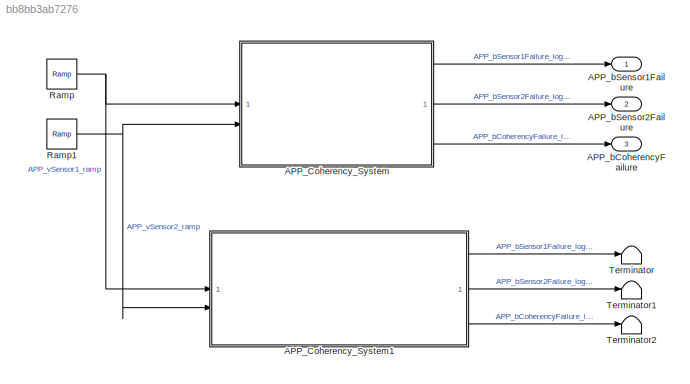
MODEL slx_bb8bb3ab7276
KIND model
CONFIG AbsTol = auto
CONFIG EnableMultiTasking = off
CONFIG FixedStep = 1e-3
CONFIG MaxStep = 1e-3
CONFIG MinStep = auto
CONFIG RelTol = 1e-3
CONFIG SampleTimeConstraint = Unconstrained
CONFIG SolverName = FixedStepDiscrete
CONFIG StartTime = 0.0
CONFIG StopTime = 1
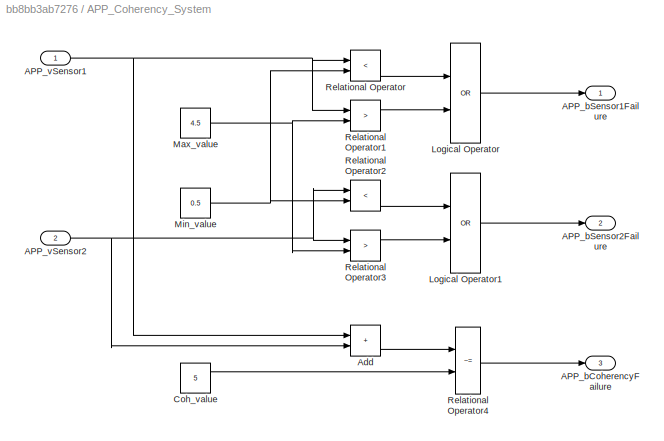
BLOCK [SubSystem] APP_Coherency_System
  TreatAsAtomicUnit = on
BLOCK [Outport] APP_Coherency_System/APP_bCoherencyFailure
  Port = 3
BLOCK [Outport] APP_Coherency_System/APP_bSensor1Failure
BLOCK [Outport] APP_Coherency_System/APP_bSensor2Failure
  Port = 2
BLOCK [Inport] APP_Coherency_System/APP_vSensor1
BLOCK [Inport] APP_Coherency_System/APP_vSensor2
  NameLocation = top
  Port = 2
BLOCK [Sum] APP_Coherency_System/Add
  IconShape = rectangular
BLOCK [Constant] APP_Coherency_System/Coh_value
  Value = 5
BLOCK [Logic] APP_Coherency_System/Logical Operator
  AllPortsSameDT = off
  Operator = OR
  OutDataTypeStr = boolean
BLOCK [Logic] APP_Coherency_System/Logical Operator1
  AllPortsSameDT = off
  Operator = OR
  OutDataTypeStr = boolean
BLOCK [Constant] APP_Coherency_System/Max_value
  Value = 4.5
BLOCK [Constant] APP_Coherency_System/Min_value
  Value = 0.5
BLOCK [RelationalOperator] APP_Coherency_System/Relational Operator
  InputSameDT = off
  Operator = <
  OutDataTypeStr = boolean
  RndMeth = Simplest
BLOCK [RelationalOperator] APP_Coherency_System/Relational Operator1
  InputSameDT = off
  Operator = >
  OutDataTypeStr = boolean
  RndMeth = Simplest
BLOCK [RelationalOperator] APP_Coherency_System/Relational Operator2
  InputSameDT = off
  Operator = <
  OutDataTypeStr = boolean
  RndMeth = Simplest
BLOCK [RelationalOperator] APP_Coherency_System/Relational Operator3
  InputSameDT = off
  Operator = >
  OutDataTypeStr = boolean
  RndMeth = Simplest
BLOCK [RelationalOperator] APP_Coherency_System/Relational Operator4
  InputSameDT = off
  Operator = ~=
  OutDataTypeStr = boolean
  RndMeth = Simplest
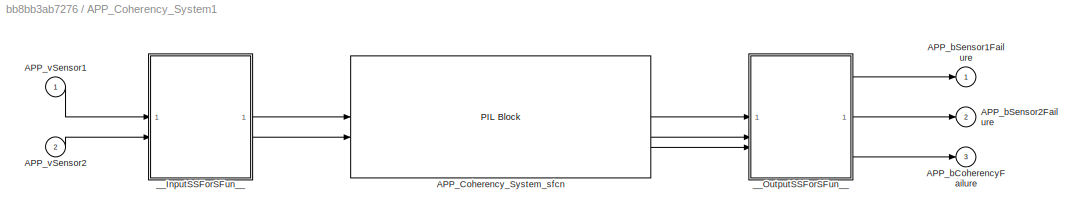
BLOCK [SubSystem] APP_Coherency_System1
  DialogController = pil_create_dialog
  LoadFcn = try\n   if ~strcmp(rtw.pil.getPILVersion, '9.13 (R2022b)_15')\n      set_param(gcb, 'DialogController', '');\n      set_param(gcb, 'DialogControllerArgs', '');\n   end\ncatch e\n      set_param(gcb, 'DialogController', '');\n      set_param(gcb, 'DialogControllerArgs', '');\nend
  Tag = __SL_testing_harness_stub_
BLOCK [Reference] APP_Coherency_System1/APP_Coherency_System_sfcn  REF=pil_lib/PIL Block
  SourceBlock = pil_lib/PIL Block
  SourceType = XILBlock
BLOCK [Outport] APP_Coherency_System1/APP_bCoherencyFailure
  Port = 3
BLOCK [Outport] APP_Coherency_System1/APP_bSensor1Failure
BLOCK [Outport] APP_Coherency_System1/APP_bSensor2Failure
  Port = 2
BLOCK [Inport] APP_Coherency_System1/APP_vSensor1
BLOCK [Inport] APP_Coherency_System1/APP_vSensor2
  NameLocation = top
  Port = 2
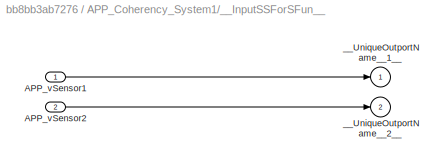
BLOCK [SubSystem] APP_Coherency_System1/__InputSSForSFun__
  PermitHierarchicalResolution = ExplicitOnly
BLOCK [Inport] APP_Coherency_System1/__InputSSForSFun__/APP_vSensor1
BLOCK [Inport] APP_Coherency_System1/__InputSSForSFun__/APP_vSensor2
  NameLocation = top
  Port = 2
BLOCK [Outport] APP_Coherency_System1/__InputSSForSFun__/__UniqueOutportName__1__
BLOCK [Outport] APP_Coherency_System1/__InputSSForSFun__/__UniqueOutportName__2__
  Port = 2
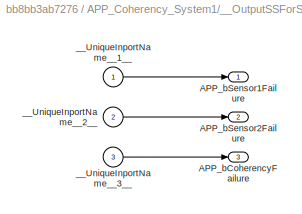
BLOCK [SubSystem] APP_Coherency_System1/__OutputSSForSFun__
  PermitHierarchicalResolution = ExplicitOnly
BLOCK [Outport] APP_Coherency_System1/__OutputSSForSFun__/APP_bCoherencyFailure
  Port = 3
BLOCK [Outport] APP_Coherency_System1/__OutputSSForSFun__/APP_bSensor1Failure
BLOCK [Outport] APP_Coherency_System1/__OutputSSForSFun__/APP_bSensor2Failure
  Port = 2
BLOCK [Inport] APP_Coherency_System1/__OutputSSForSFun__/__UniqueInportName__1__
BLOCK [Inport] APP_Coherency_System1/__OutputSSForSFun__/__UniqueInportName__2__
  Port = 2
BLOCK [Inport] APP_Coherency_System1/__OutputSSForSFun__/__UniqueInportName__3__
  Port = 3
BLOCK [Outport] APP_bCoherencyFailure
  Port = 3
BLOCK [Outport] APP_bSensor1Failure
BLOCK [Outport] APP_bSensor2Failure
  Port = 2
BLOCK [Reference] Ramp  REF=simulink/Sources/Ramp
  SourceBlock = simulink/Sources/Ramp
  SourceType = Ramp
BLOCK [Reference] Ramp1  REF=simulink/Sources/Ramp
  SourceBlock = simulink/Sources/Ramp
  SourceType = Ramp
BLOCK [Terminator] Terminator
BLOCK [Terminator] Terminator1
BLOCK [Terminator] Terminator2
NET APP_Coherency_System/APP_vSensor1:1 -> APP_Coherency_System/Add:1, APP_Coherency_System/Relational Operator1:1, APP_Coherency_System/Relational Operator:1
NET APP_Coherency_System/APP_vSensor2:1 -> APP_Coherency_System/Add:2, APP_Coherency_System/Relational Operator2:1, APP_Coherency_System/Relational Operator3:1
LINE APP_Coherency_System/Add:1 -> APP_Coherency_System/Relational Operator4:1
LINE APP_Coherency_System/Coh_value:1 -> APP_Coherency_System/Relational Operator4:2
LINE APP_Coherency_System/Logical Operator1:1 -> APP_Coherency_System/APP_bSensor2Failure:1
LINE APP_Coherency_System/Logical Operator:1 -> APP_Coherency_System/APP_bSensor1Failure:1
NET APP_Coherency_System/Max_value:1 -> APP_Coherency_System/Relational Operator1:2, APP_Coherency_System/Relational Operator3:2
NET APP_Coherency_System/Min_value:1 -> APP_Coherency_System/Relational Operator2:2, APP_Coherency_System/Relational Operator:2
LINE APP_Coherency_System/Relational Operator1:1 -> APP_Coherency_System/Logical Operator:2
LINE APP_Coherency_System/Relational Operator2:1 -> APP_Coherency_System/Logical Operator1:1
LINE APP_Coherency_System/Relational Operator3:1 -> APP_Coherency_System/Logical Operator1:2
LINE APP_Coherency_System/Relational Operator4:1 -> APP_Coherency_System/APP_bCoherencyFailure:1
LINE APP_Coherency_System/Relational Operator:1 -> APP_Coherency_System/Logical Operator:1
LINE APP_Coherency_System1:1 -> Terminator:1
LINE APP_Coherency_System1:2 -> Terminator1:1
LINE APP_Coherency_System1:3 -> Terminator2:1
LINE APP_Coherency_System:1 -> APP_bSensor1Failure:1
LINE APP_Coherency_System:2 -> APP_bSensor2Failure:1
LINE APP_Coherency_System:3 -> APP_bCoherencyFailure:1
NET Ramp1:1 -> APP_Coherency_System1:2, APP_Coherency_System:2
NET Ramp:1 -> APP_Coherency_System1:1, APP_Coherency_System:1
note: NET lines group one-source signal fan-out (src -> all destinations, sorted); 1:1 wires keep LINE
